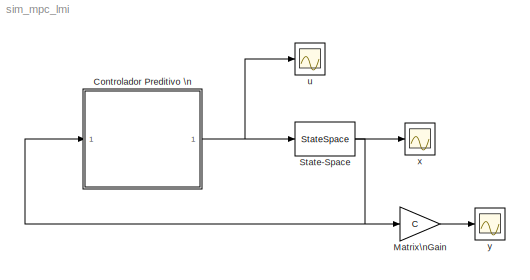
MODEL sim_mpc_lmi
KIND model
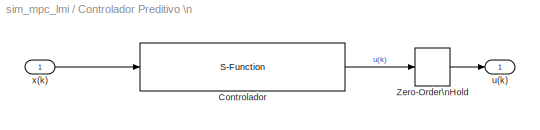
BLOCK [SubSystem] Controlador Preditivo \n
  FunctionWithSeparateData = off
  MaskCallbackString = |||||||
  MaskEnableString = on,on,on,on,on,on,on,on
  MaskHideContents = off
  MaskIconFrame = on
  MaskIconOpaque = on
  MaskIconRotate = none
  MaskIconUnits = autoscale
  MaskInitialization = \n
  MaskPortRotate = default
  MaskPromptString = A|B|C|S|R|umax|ymax|T
  MaskStyleString = edit,edit,edit,edit,edit,edit,edit,edit
  MaskToolTipString = on,on,on,on,on,on,on,on
  MaskTunableValueString = on,on,on,on,on,on,on,on
  MaskValueString = A|B|C|[1 0;0 1]|1|1*10|0.5*10|T
  MaskVariables = A=@1;B=@2;C=@3;S=@4;R=@5;umax=@6;ymax=@7;T=@8;
  MaskVisibilityString = on,on,on,on,on,on,on,on
  MinAlgLoopOccurrences = off
  Opaque = off
  Ports = [1, 1]
  PropExecContextOutsideSubsystem = off
  RTWSystemCode = Auto
  RequestExecContextInheritance = off
  SID = 1
BLOCK [S-Function] Controlador Preditivo \n/Controlador
  EnableBusSupport = off
  FunctionName = mpc_lmi
  Parameters = S,R,A,B,C,umax,ymax,T
  Ports = [1, 1]
  SID = 3
BLOCK [ZeroOrderHold] Controlador Preditivo \n/Zero-Order\nHold
  SID = 4
  SampleTime = T
BLOCK [Outport] Controlador Preditivo \n/u(k)
  IconDisplay = Port number
  SID = 5
BLOCK [Inport] Controlador Preditivo \n/x(k)
  IconDisplay = Port number
  SID = 2
BLOCK [Gain] Matrix\nGain
  Gain = C
  Multiplication = Matrix(K*u)
  SID = 6
BLOCK [StateSpace] State-Space
  A = Ac
  B = Bc
  C = eye(size(Ac,1))
  D = zeros(size(Ac,1),size(Bc,2))
  SID = 7
  X0 = [2;1]
BLOCK [Scope] u
  DataFormat = StructureWithTime
  Floating = off
  NumInputPorts = 1
  Ports = [1]
  SID = 8
  ShowLegends = off
  TimeRange = 10
  YMax = 0.5
  YMin = -2
  ZoomMode = xonly
BLOCK [Scope] x
  DataFormat = StructureWithTime
  Floating = off
  NumInputPorts = 1
  Ports = [1]
  SID = 9
  SaveName = ScopeData1
  ShowLegends = off
  YMax = 2.25
  YMin = -1.25
  ZoomMode = yonly
BLOCK [Scope] y
  DataFormat = StructureWithTime
  Floating = off
  NumInputPorts = 1
  Ports = [1]
  SID = 10
  SaveName = ScopeData2
  ShowLegends = off
  TimeRange = 10
  YMax = 1
  YMin = -1
LINE Controlador Preditivo \n/Controlador:1 -> Controlador Preditivo \n/Zero-Order\nHold:1
LINE Controlador Preditivo \n/Zero-Order\nHold:1 -> Controlador Preditivo \n/u(k):1
LINE Controlador Preditivo \n/x(k):1 -> Controlador Preditivo \n/Controlador:1
NET Controlador Preditivo \n:1 -> State-Space:1, u:1
LINE Matrix\nGain:1 -> y:1
NET State-Space:1 -> Controlador Preditivo \n:1, Matrix\nGain:1, x:1
note: NET lines group one-source signal fan-out (src -> all destinations, sorted); 1:1 wires keep LINE
